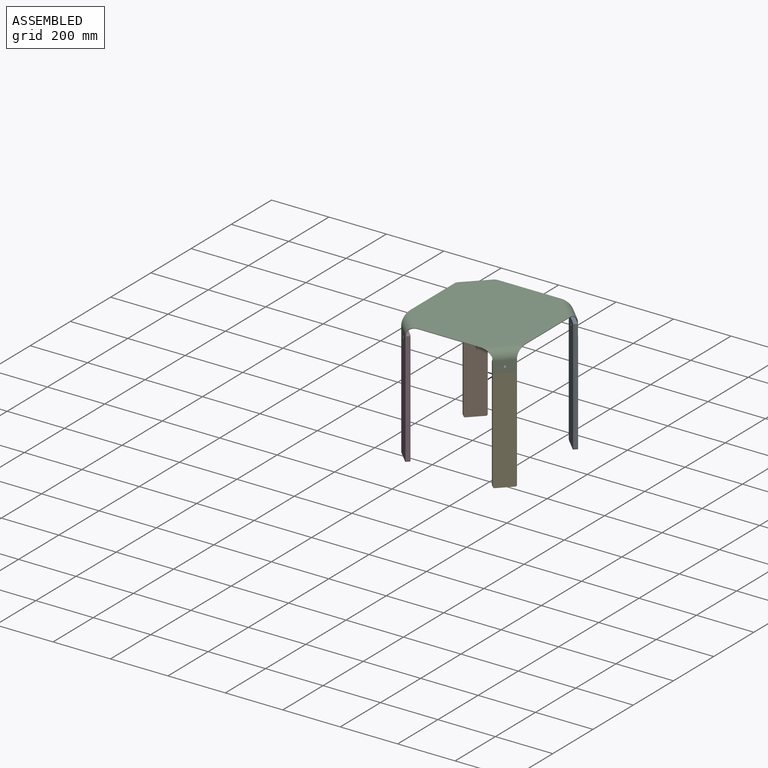
[diagram: assembled view]
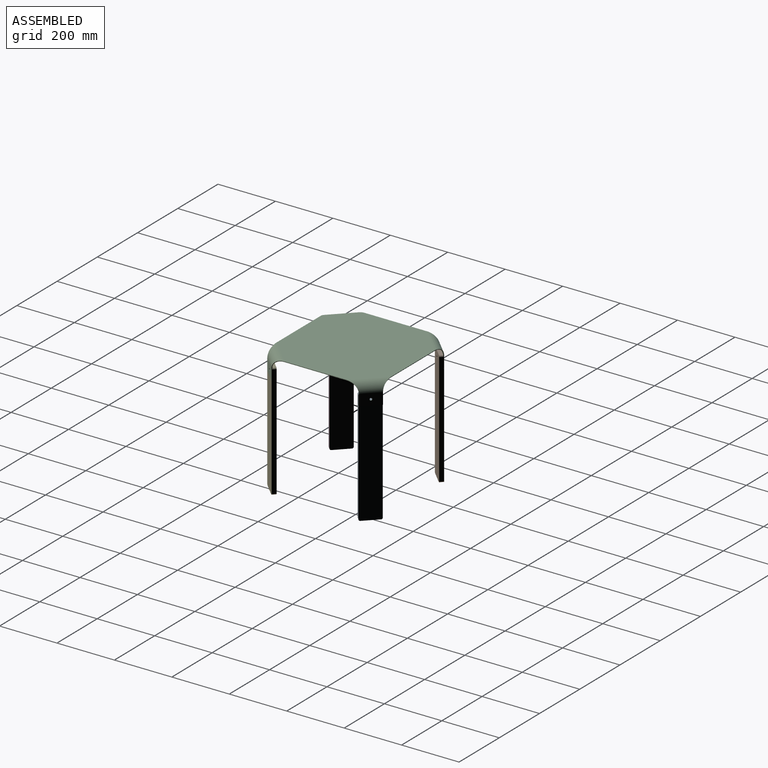
[diagram: assembled view, second angle]
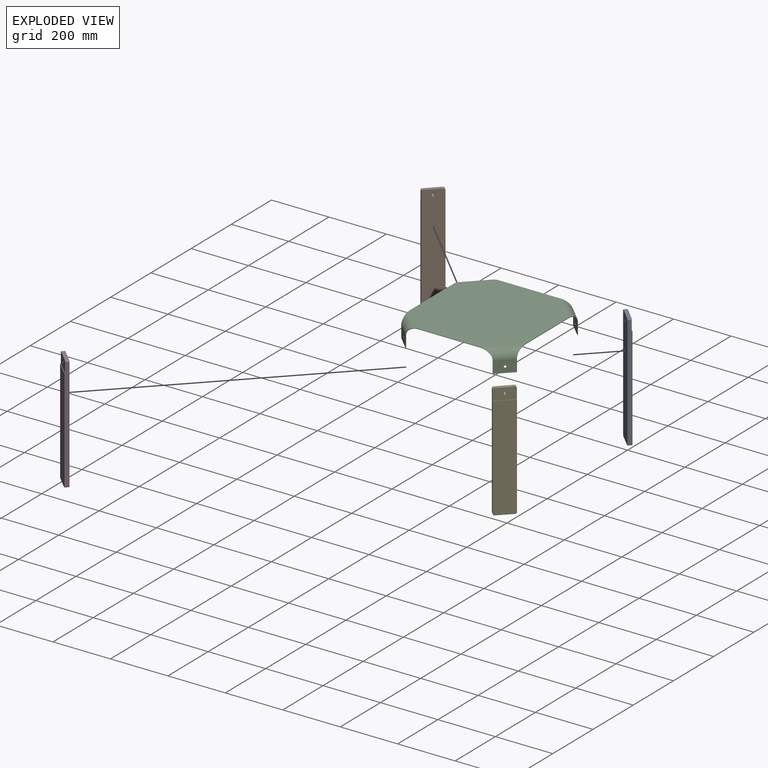
[diagram: exploded view]
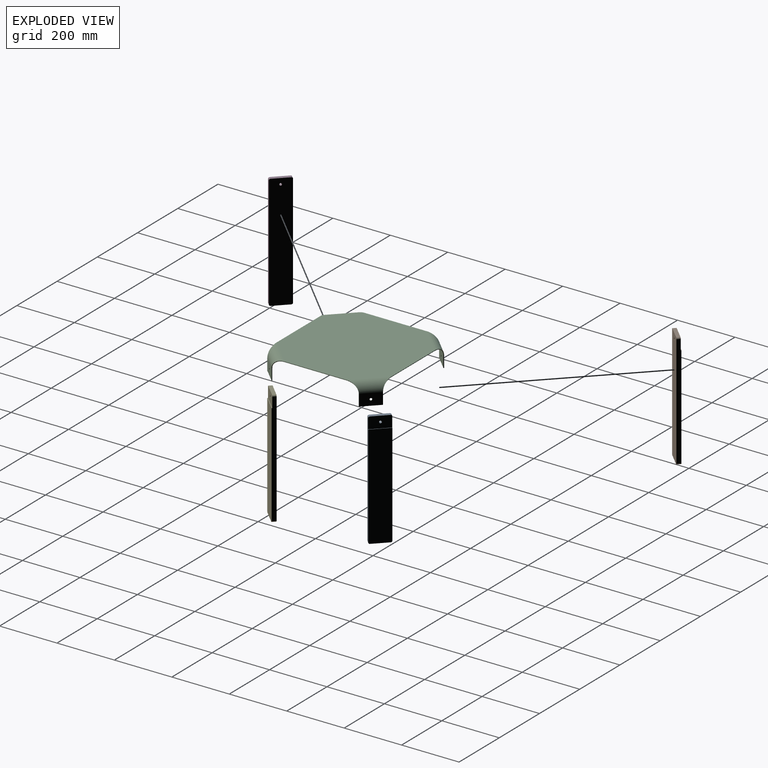
[diagram: exploded view, second angle]
ASSEMBLY  parts=5 mates=4
PART A: 13 faces, bbox 70.1x14.6x400 mm
  f0: plane 390x14.5mm, normal (-1,0,0), area 5585mm2, adj f4,f5,f6,f7,f10,f11
  f1: plane 60.09x12.6mm, normal (0,0,1), area 750.8mm2, adj f4,f5,f11,f12
  f2: plane 390x14.5mm, normal (1,0,0), area 5585mm2, adj f4,f5,f6,f7,f9,f12
  f3: plane 60.09x14.6mm, normal (0,0,-1), area 871mm2, adj f4,f6,f9,f10
  f4: plane 400x70.07mm, normal (0,1,0), area 27955.1mm2, adj f0,f1,f2,f3,f8,f9,f10,f11
  f5: plane 70.07x40mm, normal (0,-1,0), area 2741.7mm2, adj f0,f1,f2,f7,f8,f11,f12
  f6: plane 360x70.07mm, normal (0,-1,0), area 25213.4mm2, adj f0,f2,f3,f7,f9,f10
  f7: plane 70.07x2.12mm, normal (0,0,1), area 140.1mm2, adj f0,f2,f5,f6
  f8: cylinder r=4mm len=12.51mm, axis (0,-1,0), area 314.2mm2, adj f4,f5
  f9: cylinder r=5mm len=14.51mm, axis (0,-1,0), area 113.9mm2, adj f2,f3,f4,f6
  f10: cylinder r=5mm len=14.51mm, axis (0,1,0), area 113.9mm2, adj f0,f3,f4,f6
  f11: cylinder r=5mm len=12.51mm, axis (0,-1,0), area 98.2mm2, adj f0,f1,f4,f5
  f12: cylinder r=5mm len=12.51mm, axis (0,1,0), area 98.2mm2, adj f1,f2,f4,f5
PART B: same geometry as A
PART C: 46 faces, bbox 445.3x445.3x72 mm
  f0: plane 216.06x2mm, normal (0,-1,0), area 432.1mm2, adj f4,f5,f12,f22
  f1: plane 216.06x2mm, normal (1,0,0), area 432.1mm2, adj f4,f5,f13,f42
  f2: plane 216.06x2mm, normal (0,1,0), area 432.1mm2, adj f4,f5,f33,f43
  f3: plane 216.06x2mm, normal (-1,0,0), area 432.1mm2, adj f4,f5,f23,f32
  f4: plane 400x400mm, normal (0,0,1), area 143082.6mm2, adj f0,f1,f2,f3,f14,f24,f34,f44
  f5: plane 400x400mm, normal (0,0,-1), area 143082.6mm2, adj f0,f1,f2,f3,f15,f25,f35,f45
  f6: plane 40x1.42mm, normal (-0.71,-0.71,0), area 80mm2, adj f7,f10,f11,f12
  f7: plane 51.04x50.88mm, normal (0,0,-1), area 140.1mm2, adj f6,f9,f10,f11
  f8: cylinder r=4mm len=8mm, axis (0.71,-0.71,0), area 50.3mm2, adj f10,f11
  f9: plane 40x1.42mm, normal (0.71,0.71,0), area 80mm2, adj f7,f10,f11,f13
  f10: plane 49.63x49.46mm, normal (0.71,-0.71,0), area 2752.4mm2, adj f6,f7,f8,f9,f14
  f11: plane 49.63x49.46mm, normal (-0.71,0.71,0), area 2752.4mm2, adj f6,f7,f8,f9,f15
  f12: bspline ~43.8x32mm, area 117.3mm2, adj f0,f6,f14,f15
  f13: bspline ~43.93x32mm, area 117.3mm2, adj f1,f9,f14,f15
  f14: cylinder r=32mm len=114.72mm, axis (-0.71,-0.71,0), area 4600.3mm2, adj f4,f10,f12,f13
  f15: cylinder r=30mm len=113.3mm, axis (-0.71,-0.71,0), area 4317.2mm2, adj f5,f11,f12,f13
  f16: plane 40x1.42mm, normal (-0.71,0.71,0), area 80mm2, adj f17,f20,f21,f23
  f17: plane 51.04x50.88mm, normal (0,0,-1), area 140.1mm2, adj f16,f19,f20,f21
  f18: cylinder r=4mm len=8mm, axis (0.71,0.71,0), area 50.3mm2, adj f20,f21
  f19: plane 40x1.42mm, normal (0.71,-0.71,0), area 80mm2, adj f17,f20,f21,f22
  f20: plane 49.63x49.46mm, normal (-0.71,-0.71,0), area 2752.4mm2, adj f16,f17,f18,f19,f24
  f21: plane 49.63x49.46mm, normal (0.71,0.71,0), area 2752.4mm2, adj f16,f17,f18,f19,f25
  f22: bspline ~43.93x32mm, area 117.3mm2, adj f0,f19,f24,f25
  f23: bspline ~43.8x32mm, area 117.3mm2, adj f3,f16,f24,f25
  f24: cylinder r=32mm len=114.72mm, axis (0.71,-0.71,0), area 4598.8mm2, adj f4,f20,f22,f23
  f25: cylinder r=30mm len=113.3mm, axis (0.71,-0.71,0), area 4311.6mm2, adj f5,f21,f22,f23
  f26: plane 40x1.42mm, normal (0.71,0.71,0), area 80mm2, adj f27,f30,f31,f33
  f27: plane 51.04x50.88mm, normal (0,0,-1), area 140.1mm2, adj f26,f29,f30,f31
  f28: cylinder r=4mm len=8mm, axis (0.71,-0.71,0), area 50.3mm2, adj f30,f31
  f29: plane 40x1.42mm, normal (-0.71,-0.71,0), area 80mm2, adj f27,f30,f31,f32
  f30: plane 49.63x49.46mm, normal (-0.71,0.71,0), area 2752.4mm2, adj f26,f27,f28,f29,f34
  f31: plane 49.63x49.46mm, normal (0.71,-0.71,0), area 2752.4mm2, adj f26,f27,f28,f29,f35
  f32: bspline ~43.93x32mm, area 117.3mm2, adj f3,f29,f34,f35
  f33: bspline ~43.8x32mm, area 117.3mm2, adj f2,f26,f34,f35
  f34: cylinder r=32mm len=114.72mm, axis (-0.71,-0.71,0), area 4598.8mm2, adj f4,f30,f32,f33
  f35: cylinder r=30mm len=113.3mm, axis (-0.71,-0.71,0), area 4311.6mm2, adj f5,f31,f32,f33
  f36: plane 40x1.42mm, normal (0.71,-0.71,0), area 80mm2, adj f37,f40,f41,f42
  f37: plane 51.04x50.88mm, normal (0,0,-1), area 140.1mm2, adj f36,f39,f40,f41
  f38: cylinder r=4mm len=8mm, axis (0.71,0.71,0), area 50.3mm2, adj f40,f41
  f39: plane 40x1.42mm, normal (-0.71,0.71,0), area 80mm2, adj f37,f40,f41,f43
  f40: plane 49.63x49.46mm, normal (0.71,0.71,0), area 2752.4mm2, adj f36,f37,f38,f39,f44
  f41: plane 49.63x49.46mm, normal (-0.71,-0.71,0), area 2752.4mm2, adj f36,f37,f38,f39,f45
  f42: bspline ~43.8x32mm, area 117.3mm2, adj f1,f36,f44,f45
  f43: bspline ~43.93x32mm, area 117.3mm2, adj f2,f39,f44,f45
  f44: cylinder r=32mm len=114.72mm, axis (0.71,-0.71,0), area 4600.3mm2, adj f4,f40,f42,f43
  f45: cylinder r=30mm len=113.3mm, axis (0.71,-0.71,0), area 4317.2mm2, adj f5,f41,f42,f43
PART D: same geometry as A
PART E: same geometry as A
PLACE A rot(axis=(0,0,1),135deg) t=(0.15,-0.15,-2)mm
PLACE B rot(axis=(0,0,-1),135deg) t=(0.15,0.15,-2)mm
PLACE C t=(-200,200,-72)mm
PLACE D rot(axis=(0,0,-1),45deg) t=(-0.15,0.15,-2)mm
PLACE E rot(axis=(0,0,1),45deg) t=(0.43,0.44,-2)mm
MATE fastened A.f8 <-> C.f38  axis (0.71,0.71,0) through (175.19,175.27,-52)mm
MATE fastened E.f8 <-> C.f8  axis (0.71,-0.71,0) through (175.86,-174.6,-52)mm
MATE fastened D.f8 <-> C.f18  axis (-0.71,-0.71,0) through (-175.19,-175.27,-52)mm
MATE fastened B.f8 <-> C.f28  axis (-0.71,0.71,0) through (-175.27,175.19,-52)mm
